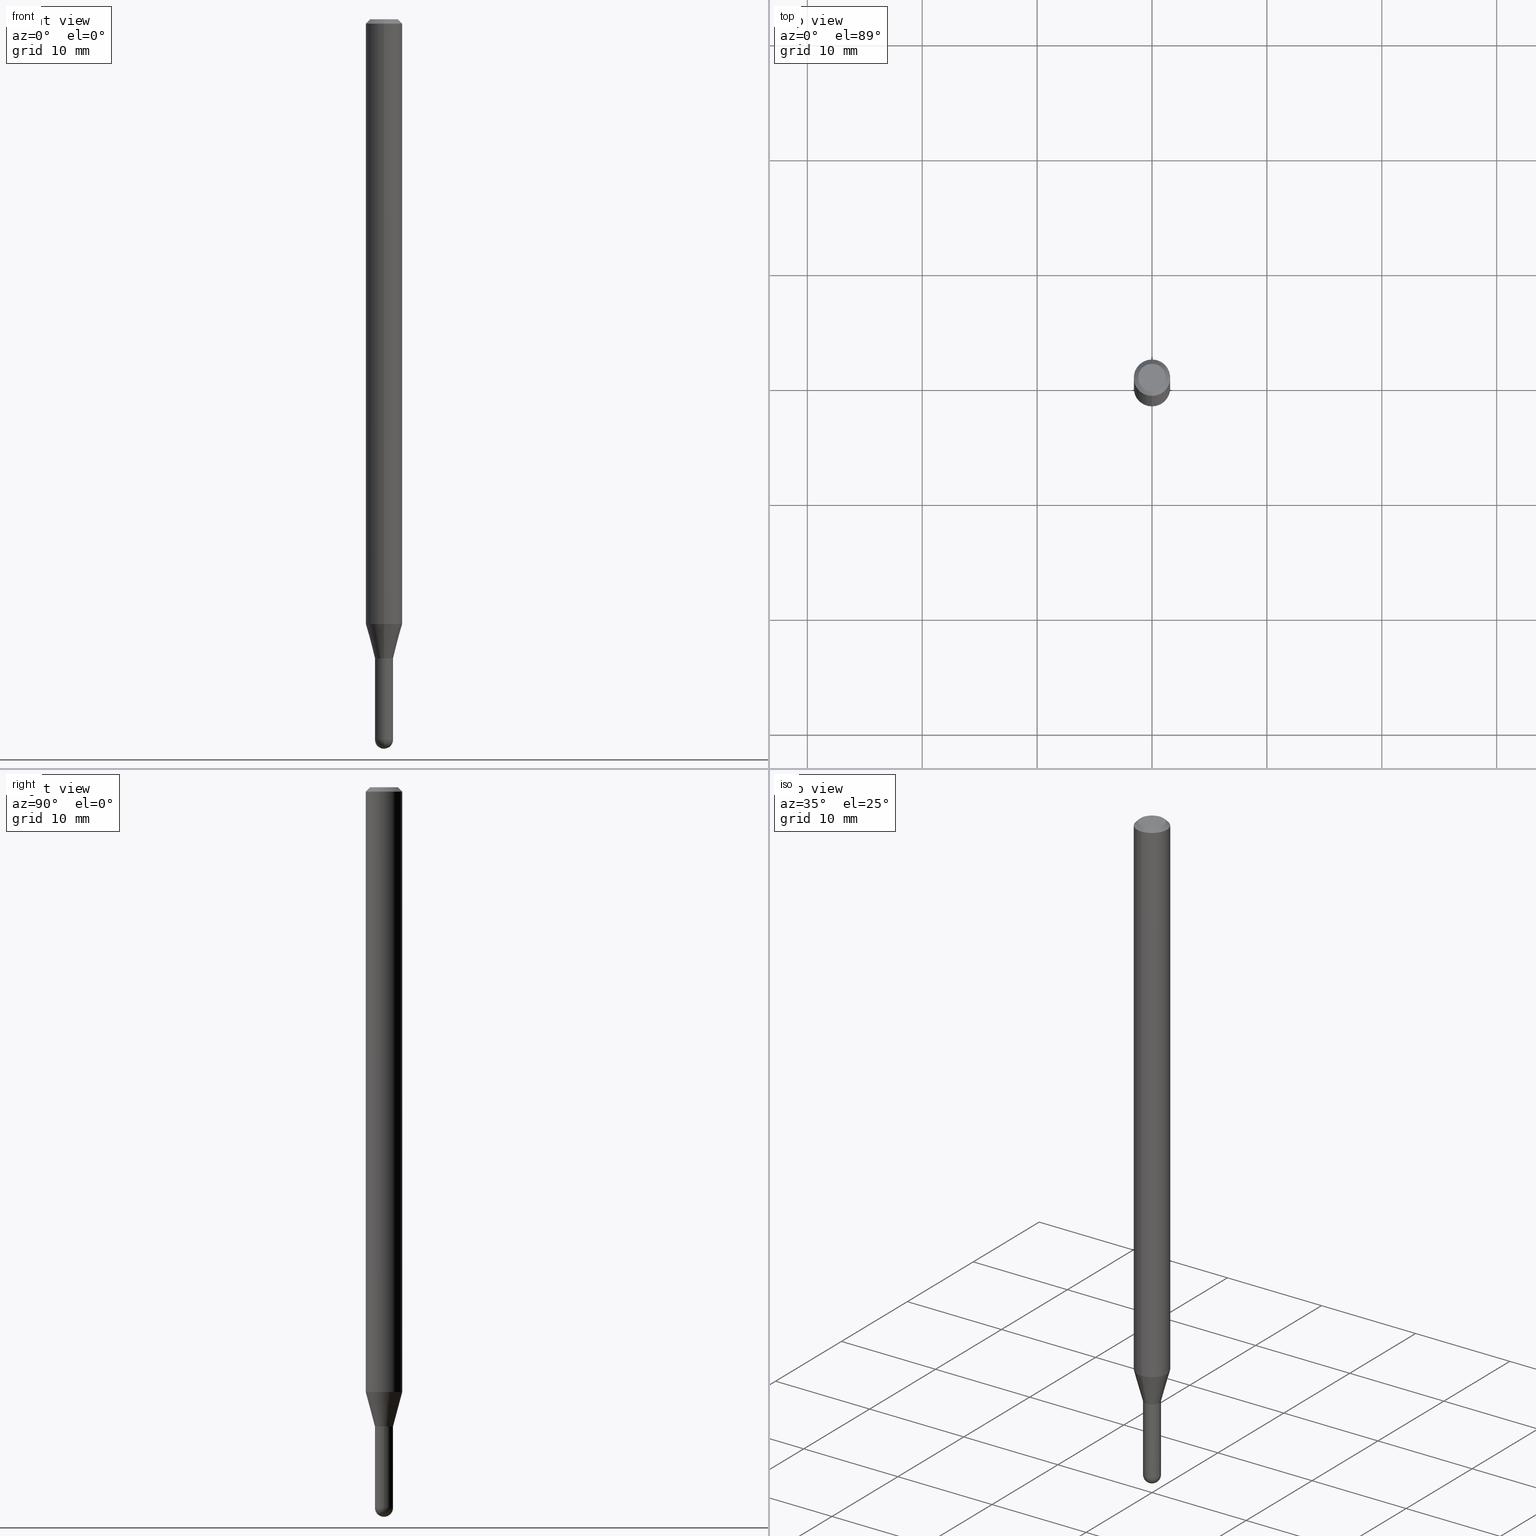
[diagram: canonical four-view strip — front | top / right | iso, engineering-drawing reading convention]
A machine part, canonical four-view strip (front | top / right | iso — engineering-drawing reading convention). The complete STEP part file that produces these views, byte-faithful:
ISO-10303-21;
HEADER;
FILE_DESCRIPTION (( 'STEP AP203' ),
    '1' );
FILE_NAME ('04467.STEP',
    '2024-03-08T19:49:21',
    ( '' ),
    ( '' ),
    'SwSTEP 2.0',
    'SolidWorks 2023',
    '' );
FILE_SCHEMA (( 'CONFIG_CONTROL_DESIGN' ));
ENDSEC;

DATA;
#1 = VECTOR ( 'NONE', #56, 39.37007874015748143 ) ;
#2 = CALENDAR_DATE ( 2024, 8, 3 ) ;
#3 = EDGE_CURVE ( 'NONE', #295, #327, #208, .T. ) ;
#4 = EDGE_LOOP ( 'NONE', ( #88, #420, #488, #507 ) ) ;
#5 = CARTESIAN_POINT ( 'NONE',  ( -0.03099999999999999978, -7.913137530749477307E-15, -2.469000000000000306 ) ) ;
#6 = PERSON_AND_ORGANIZATION ( #233, #476 ) ;
#7 =( NAMED_UNIT ( * ) PLANE_ANGLE_UNIT ( ) SI_UNIT ( $, .RADIAN. ) );
#8 = ORIENTED_EDGE ( 'NONE', *, *, #152, .T. ) ;
#9 = CARTESIAN_POINT ( 'NONE',  ( 5.355576685545449192E-29, -7.646344132066488554E-15, -2.189999999999999947 ) ) ;
#10 = PRODUCT_DEFINITION ( 'UNKNOWN', '', #289, #39 ) ;
#11 = COORDINATED_UNIVERSAL_TIME_OFFSET ( 5, 0, .BEHIND. ) ;
#12 = DIRECTION ( 'NONE',  ( -2.445487892702933065E-29, 3.491454005863323886E-15, 1.000000000000000000 ) ) ;
#13 = DIRECTION ( 'NONE',  ( -2.445487892702933065E-29, 3.491454005863323886E-15, 1.000000000000000000 ) ) ;
#14 = EDGE_CURVE ( 'NONE', #173, #66, #314, .T. ) ;
#15 = DIRECTION ( 'NONE',  ( 2.445487892702933065E-29, -3.491454005863323886E-15, -1.000000000000000000 ) ) ;
#16 = ORIENTED_EDGE ( 'NONE', *, *, #247, .T. ) ;
#17 = FACE_OUTER_BOUND ( 'NONE', #459, .T. ) ;
#18 =( CONVERSION_BASED_UNIT ( 'INCH', #211 ) LENGTH_UNIT ( ) NAMED_UNIT ( #358 ) );
#19 = CIRCLE ( 'NONE', #296, 0.03099999999999999978 ) ;
#20 = CARTESIAN_POINT ( 'NONE',  ( -2.129803616693775335E-16, -0.03050000000000764253, -2.189999999999999947 ) ) ;
#21 = ORIENTED_EDGE ( 'NONE', *, *, #424, .F. ) ;
#22 = CARTESIAN_POINT ( 'NONE',  ( 2.202682480856840330E-16, 0.03099999999999227679, -2.189999999999999947 ) ) ;
#23 = VERTEX_POINT ( 'NONE', #305 ) ;
#24 = DIRECTION ( 'NONE',  ( -1.807323732225379443E-15, -0.2588190451025252359, 0.9659258262890670910 ) ) ;
#25 = ORIENTED_EDGE ( 'NONE', *, *, #441, .F. ) ;
#26 = CARTESIAN_POINT ( 'NONE',  ( 6.035211466974647334E-29, -8.624263830681084699E-15, -2.469000000000000306 ) ) ;
#27 = VERTEX_POINT ( 'NONE', #503 ) ;
#28 = CARTESIAN_POINT ( 'NONE',  ( 5.355618485019424233E-29, -7.646284272840679535E-15, -2.189999999999999947 ) ) ;
#29 = CYLINDRICAL_SURFACE ( 'NONE', #203, 0.03099999999999992345 ) ;
#30 = ORIENTED_EDGE ( 'NONE', *, *, #370, .T. ) ;
#31 = EDGE_LOOP ( 'NONE', ( #495, #353, #228, #491 ) ) ;
#32 = CYLINDRICAL_SURFACE ( 'NONE', #45, 0.03099999999999992345 ) ;
#33 = CIRCLE ( 'NONE', #336, 0.03099999999999999978 ) ;
#34 = EDGE_CURVE ( 'NONE', #66, #173, #321, .T. ) ;
#35 = VECTOR ( 'NONE', #280, 39.37007874015748143 ) ;
#36 = APPROVAL_ROLE ( '' ) ;
#37 = PERSON_AND_ORGANIZATION ( #233, #476 ) ;
#38 = VECTOR ( 'NONE', #409, 39.37007874015748143 ) ;
#39 = DESIGN_CONTEXT ( 'detailed design', #210, 'design' ) ;
#40 = LOCAL_TIME ( 14, 49, 21.00000000000000000, #77 ) ;
#41 = APPROVAL_DATE_TIME ( #371, #84 ) ;
#42 = VERTEX_POINT ( 'NONE', #107 ) ;
#43 = DIRECTION ( 'NONE',  ( -6.982962677686265922E-15, -1.000000000000000000, 0.000000000000000000 ) ) ;
#44 = COORDINATED_UNIVERSAL_TIME_OFFSET ( 5, 0, .BEHIND. ) ;
#45 = AXIS2_PLACEMENT_3D ( 'NONE', #351, #487, #324 ) ;
#46 = DIRECTION ( 'NONE',  ( -2.445487892702932784E-29, 3.491454005863323491E-15, 1.000000000000000000 ) ) ;
#47 = ADVANCED_FACE ( 'NONE', ( #64 ), #368, .T. ) ;
#48 = AXIS2_PLACEMENT_3D ( 'NONE', #168, #92, #130 ) ;
#49 = AXIS2_PLACEMENT_3D ( 'NONE', #428, #344, #457 ) ;
#50 = CARTESIAN_POINT ( 'NONE',  ( 3.668231839054415852E-31, -5.237181008795008558E-17, -0.01500000000000006710 ) ) ;
#51 = DIRECTION ( 'NONE',  ( 6.982962677686265922E-15, 1.000000000000000000, 0.000000000000000000 ) ) ;
#52 = CARTESIAN_POINT ( 'NONE',  ( 4.440892098501135963E-16, 0.06249999999999995143, -0.01500000000000028394 ) ) ;
#53 = ORIENTED_EDGE ( 'NONE', *, *, #346, .F. ) ;
#54 = EDGE_CURVE ( 'NONE', #134, #42, #102, .T. ) ;
#55 = ORIENTED_EDGE ( 'NONE', *, *, #313, .F. ) ;
#56 = DIRECTION ( 'NONE',  ( -2.445487892702932784E-29, 3.491454005863323491E-15, 1.000000000000000000 ) ) ;
#57 = AXIS2_PLACEMENT_3D ( 'NONE', #381, #13, #416 ) ;
#58 = ORIENTED_EDGE ( 'NONE', *, *, #158, .T. ) ;
#59 = CARTESIAN_POINT ( 'NONE',  ( 0.03099999999999999978, -8.349877621843383680E-15, -2.469000000000000306 ) ) ;
#60 = DIRECTION ( 'NONE',  ( 1.000000000000000000, -6.982962677686265922E-15, 4.883557194083112340E-29 ) ) ;
#61 = CARTESIAN_POINT ( 'NONE',  ( -2.164718430082201463E-16, -0.03100000000000756664, -2.189999999999999947 ) ) ;
#62 = CIRCLE ( 'NONE', #81, 0.03099999999999992345 ) ;
#63 = ORIENTED_EDGE ( 'NONE', *, *, #76, .F. ) ;
#64 = FACE_OUTER_BOUND ( 'NONE', #452, .T. ) ;
#65 = CARTESIAN_POINT ( 'NONE',  ( 4.440892098501130047E-16, 0.06249999999999273498, -2.072440399561584101 ) ) ;
#66 = VERTEX_POINT ( 'NONE', #307 ) ;
#67 = LOCAL_TIME ( 14, 49, 21.00000000000000000, #11 ) ;
#68 = CARTESIAN_POINT ( 'NONE',  ( -4.364351673553410837E-16, -0.06250000000000725808, -2.072440399561583657 ) ) ;
#69 = EDGE_LOOP ( 'NONE', ( #142, #176, #251, #71 ) ) ;
#70 = ADVANCED_FACE ( 'NONE', ( #465 ), #389, .T. ) ;
#71 = ORIENTED_EDGE ( 'NONE', *, *, #14, .T. ) ;
#72 = VERTEX_POINT ( 'NONE', #59 ) ;
#73 = AXIS2_PLACEMENT_3D ( 'NONE', #187, #464, #103 ) ;
#74 = DIRECTION ( 'NONE',  ( -6.982962677686265922E-15, -1.000000000000000000, 3.491454005863323886E-15 ) ) ;
#75 = CARTESIAN_POINT ( 'NONE',  ( 3.321787289678987037E-16, 0.03099999999999227679, -2.189999999999999947 ) ) ;
#76 = EDGE_CURVE ( 'NONE', #468, #173, #264, .T. ) ;
#77 = COORDINATED_UNIVERSAL_TIME_OFFSET ( 5, 0, .BEHIND. ) ;
#78 = APPROVAL_PERSON_ORGANIZATION ( #481, #111, #36 ) ;
#79 = CARTESIAN_POINT ( 'NONE',  ( 4.440892098500625669E-16, 0.06250000000000000000, -2.182158753664577429E-16 ) ) ;
#80 = CALENDAR_DATE ( 2024, 8, 3 ) ;
#81 = AXIS2_PLACEMENT_3D ( 'NONE', #357, #397, #43 ) ;
#82 = EDGE_CURVE ( 'NONE', #85, #66, #429, .T. ) ;
#83 = LINE ( 'NONE', #243, #396 ) ;
#84 = APPROVAL ( #115, 'UNSPECIFIED' ) ;
#85 = VERTEX_POINT ( 'NONE', #68 ) ;
#86 = AXIS2_PLACEMENT_3D ( 'NONE', #448, #442, #87 ) ;
#87 = DIRECTION ( 'NONE',  ( 6.982962677686265922E-15, 1.000000000000000000, -3.491454005863323491E-15 ) ) ;
#88 = ORIENTED_EDGE ( 'NONE', *, *, #175, .T. ) ;
#89 = CARTESIAN_POINT ( 'NONE',  ( 6.035211466974647334E-29, -8.624263830681084699E-15, -2.469000000000000306 ) ) ;
#90 = ADVANCED_FACE ( 'NONE', ( #435 ), #508, .F. ) ;
#91 = AXIS2_PLACEMENT_3D ( 'NONE', #258, #192, #270 ) ;
#92 = DIRECTION ( 'NONE',  ( -2.445487892702933065E-29, 3.491454005863323886E-15, 1.000000000000000000 ) ) ;
#93 = EDGE_LOOP ( 'NONE', ( #58, #95 ) ) ;
#94 = VERTEX_POINT ( 'NONE', #438 ) ;
#95 = ORIENTED_EDGE ( 'NONE', *, *, #450, .T. ) ;
#96 = CARTESIAN_POINT ( 'NONE',  ( 3.840629472727447874E-16, 0.04749999999999999362, -2.313455976474456035E-16 ) ) ;
#97 = CARTESIAN_POINT ( 'NONE',  ( 1.601832043617265046E-45, -2.286955875797138109E-31, -6.550153236893773664E-17 ) ) ;
#98 = ORIENTED_EDGE ( 'NONE', *, *, #247, .F. ) ;
#99 = PLANE ( 'NONE',  #159 ) ;
#100 = ADVANCED_FACE ( 'NONE', ( #155 ), #241, .T. ) ;
#101 = ORIENTED_EDGE ( 'NONE', *, *, #450, .F. ) ;
#102 = LINE ( 'NONE', #302, #398 ) ;
#103 = DIRECTION ( 'NONE',  ( -7.105427357601001070E-15, -1.000000000000000000, 0.000000000000000000 ) ) ;
#104 = DIRECTION ( 'NONE',  ( -1.000000000000000000, 6.982962677686265922E-15, -4.883557194083112340E-29 ) ) ;
#105 = VECTOR ( 'NONE', #24, 39.37007874015748143 ) ;
#106 = LINE ( 'NONE', #22, #230 ) ;
#107 = CARTESIAN_POINT ( 'NONE',  ( -0.03099999999999999978, -7.913137530749477307E-15, -2.189999999999999947 ) ) ;
#108 = EDGE_CURVE ( 'NONE', #331, #94, #62, .T. ) ;
#109 = DIRECTION ( 'NONE',  ( -2.445487892702933065E-29, 3.491454005863323886E-15, 1.000000000000000000 ) ) ;
#110 = AXIS2_PLACEMENT_3D ( 'NONE', #232, #114, #480 ) ;
#111 = APPROVAL ( #316, 'UNSPECIFIED' ) ;
#112 = DIRECTION ( 'NONE',  ( -2.445468806185136597E-29, 3.491481338843145583E-15, 1.000000000000000000 ) ) ;
#113 = ORIENTED_EDGE ( 'NONE', *, *, #337, .F. ) ;
#114 = DIRECTION ( 'NONE',  ( 2.438088387897960049E-29, -3.491481338843145188E-15, -1.000000000000000000 ) ) ;
#115 = APPROVAL_STATUS ( 'not_yet_approved' ) ;
#116 = CIRCLE ( 'NONE', #259, 0.03099999999999999978 ) ;
#117 = ADVANCED_FACE ( 'NONE', ( #157 ), #197, .T. ) ;
#118 = APPROVAL_ROLE ( '' ) ;
#119 = VERTEX_POINT ( 'NONE', #75 ) ;
#120 = DIRECTION ( 'NONE',  ( -2.445487892702933065E-29, 3.491454005863323886E-15, 1.000000000000000000 ) ) ;
#121 = CC_DESIGN_PERSON_AND_ORGANIZATION_ASSIGNMENT ( #479, #439, ( #10 ) ) ;
#122 = APPROVAL_ROLE ( '' ) ;
#123 = FACE_OUTER_BOUND ( 'NONE', #446, .T. ) ;
#124 = CIRCLE ( 'NONE', #458, 0.03099999999999992345 ) ;
#125 = PERSON_AND_ORGANIZATION ( #233, #476 ) ;
#126 = ADVANCED_FACE ( 'NONE', ( #401 ), #427, .T. ) ;
#127 = SPHERICAL_SURFACE ( 'NONE', #412, 0.03099999999999987835 ) ;
#128 = AXIS2_PLACEMENT_3D ( 'NONE', #512, #160, #74 ) ;
#129 = LINE ( 'NONE', #287, #153 ) ;
#130 = DIRECTION ( 'NONE',  ( -6.982962677686265922E-15, -1.000000000000000000, 0.000000000000000000 ) ) ;
#131 = ORIENTED_EDGE ( 'NONE', *, *, #301, .T. ) ;
#132 = CC_DESIGN_APPROVAL ( #111, ( #289 ) ) ;
#133 = CARTESIAN_POINT ( 'NONE',  ( 6.035211466974647334E-29, -8.624263830681084699E-15, -2.469000000000000306 ) ) ;
#134 = VERTEX_POINT ( 'NONE', #5 ) ;
#135 = DIRECTION ( 'NONE',  ( 1.000000000000000000, -6.982962677686270655E-15, 0.000000000000000000 ) ) ;
#136 = CYLINDRICAL_SURFACE ( 'NONE', #499, 0.06250000000000000000 ) ;
#137 = ORIENTED_EDGE ( 'NONE', *, *, #14, .F. ) ;
#138 = DIRECTION ( 'NONE',  ( -2.445468806185136597E-29, 3.491481338843145583E-15, 1.000000000000000000 ) ) ;
#139 = AXIS2_PLACEMENT_3D ( 'NONE', #9, #112, #165 ) ;
#140 = AXIS2_PLACEMENT_3D ( 'NONE', #419, #12, #204 ) ;
#141 = CARTESIAN_POINT ( 'NONE',  ( -2.202682480855702151E-16, -0.03100000000000856237, -2.469000000000000306 ) ) ;
#142 = ORIENTED_EDGE ( 'NONE', *, *, #301, .F. ) ;
#143 = CARTESIAN_POINT ( 'NONE',  ( 5.355618485019424233E-29, -7.646284272840679535E-15, -2.189999999999999947 ) ) ;
#144 = DIRECTION ( 'NONE',  ( 1.000000000000000000, -6.982962677686266711E-15, 4.876176775795935232E-29 ) ) ;
#145 = AXIS2_PLACEMENT_3D ( 'NONE', #494, #199, #180 ) ;
#146 = EDGE_CURVE ( 'NONE', #27, #468, #352, .T. ) ;
#147 = CARTESIAN_POINT ( 'NONE',  ( 5.355618485019424233E-29, -7.646284272840679535E-15, -2.189999999999999947 ) ) ;
#148 = ORIENTED_EDGE ( 'NONE', *, *, #391, .F. ) ;
#149 = CARTESIAN_POINT ( 'NONE',  ( 3.668231839054415852E-31, -5.237181008795008558E-17, -0.01500000000000006710 ) ) ;
#150 = DIRECTION ( 'NONE',  ( -2.445487892702933065E-29, 3.491454005863323886E-15, 1.000000000000000000 ) ) ;
#151 = LINE ( 'NONE', #61, #105 ) ;
#152 = EDGE_CURVE ( 'NONE', #72, #23, #354, .T. ) ;
#153 = VECTOR ( 'NONE', #444, 39.37007874015748143 ) ;
#154 = DIRECTION ( 'NONE',  ( -2.445487892702933065E-29, 3.491454005863323886E-15, 1.000000000000000000 ) ) ;
#155 = FACE_OUTER_BOUND ( 'NONE', #205, .T. ) ;
#156 = ORIENTED_EDGE ( 'NONE', *, *, #478, .T. ) ;
#157 = FACE_OUTER_BOUND ( 'NONE', #4, .T. ) ;
#158 = EDGE_CURVE ( 'NONE', #23, #42, #463, .T. ) ;
#159 = AXIS2_PLACEMENT_3D ( 'NONE', #147, #256, #298 ) ;
#160 = DIRECTION ( 'NONE',  ( -2.445487892702933065E-29, 3.491454005863323886E-15, 1.000000000000000000 ) ) ;
#161 = APPROVAL_STATUS ( 'not_yet_approved' ) ;
#162 = CARTESIAN_POINT ( 'NONE',  ( 1.601832043617265046E-45, -2.286955875797138109E-31, -6.550153236893773664E-17 ) ) ;
#163 = DATE_TIME_ROLE ( 'classification_date' ) ;
#164 = DIRECTION ( 'NONE',  ( 5.024295867788190974E-15, 0.7071067811865681119, 0.7071067811865270336 ) ) ;
#165 = DIRECTION ( 'NONE',  ( 1.000000000000000000, -6.982962677686270655E-15, 0.000000000000000000 ) ) ;
#166 = ADVANCED_FACE ( 'NONE', ( #123 ), #32, .F. ) ;
#167 = SECURITY_CLASSIFICATION_LEVEL ( 'unclassified' ) ;
#168 = CARTESIAN_POINT ( 'NONE',  ( 5.355618485019424233E-29, -7.646284272840679535E-15, -2.189999999999999947 ) ) ;
#169 = CIRCLE ( 'NONE', #73, 0.03099999999999987835 ) ;
#170 = PERSON_AND_ORGANIZATION_ROLE ( 'creator' ) ;
#171 = CARTESIAN_POINT ( 'NONE',  ( 5.355618485019424233E-29, -7.646284272840679535E-15, -2.189999999999999947 ) ) ;
#172 = PLANE ( 'NONE',  #86 ) ;
#173 = VERTEX_POINT ( 'NONE', #52 ) ;
#174 = CARTESIAN_POINT ( 'NONE',  ( 2.167155344068840712E-16, 0.03049999999999235267, -2.189999999999999947 ) ) ;
#175 = EDGE_CURVE ( 'NONE', #85, #385, #250, .T. ) ;
#176 = ORIENTED_EDGE ( 'NONE', *, *, #370, .F. ) ;
#177 = CIRCLE ( 'NONE', #254, 0.06250000000000000000 ) ;
#178 = DIRECTION ( 'NONE',  ( -6.982962677686265922E-15, -1.000000000000000000, 0.000000000000000000 ) ) ;
#179 = EDGE_LOOP ( 'NONE', ( #221, #335, #25, #265 ) ) ;
#180 = DIRECTION ( 'NONE',  ( 1.000000000000000000, -6.982962677686266711E-15, 4.876176775795935232E-29 ) ) ;
#181 = DIRECTION ( 'NONE',  ( -2.445487892702933065E-29, 3.491454005863323886E-15, 1.000000000000000000 ) ) ;
#182 = DIRECTION ( 'NONE',  ( 1.839019923739650408E-15, 0.2588190451025319527, 0.9659258262890650926 ) ) ;
#183 = CARTESIAN_POINT ( 'NONE',  ( 0.000000000000000000, 0.000000000000000000, 0.000000000000000000 ) ) ;
#184 = ORIENTED_EDGE ( 'NONE', *, *, #267, .T. ) ;
#185 = CC_DESIGN_PERSON_AND_ORGANIZATION_ASSIGNMENT ( #364, #443, ( #253 ) ) ;
#186 = AXIS2_PLACEMENT_3D ( 'NONE', #403, #138, #144 ) ;
#187 = CARTESIAN_POINT ( 'NONE',  ( 6.035211466974647334E-29, -8.624263830681084699E-15, -2.469000000000000306 ) ) ;
#188 = DIRECTION ( 'NONE',  ( -2.445487892702933065E-29, 3.491454005863323886E-15, 1.000000000000000000 ) ) ;
#189 = ORIENTED_EDGE ( 'NONE', *, *, #346, .T. ) ;
#190 = ORIENTED_EDGE ( 'NONE', *, *, #273, .T. ) ;
#191 = FACE_OUTER_BOUND ( 'NONE', #69, .T. ) ;
#192 = DIRECTION ( 'NONE',  ( -2.445487892702933065E-29, 3.491454005863323886E-15, 1.000000000000000000 ) ) ;
#193 = DIRECTION ( 'NONE',  ( -6.982962677686266711E-15, -1.000000000000000000, 3.491454005863323886E-15 ) ) ;
#194 = AXIS2_PLACEMENT_3D ( 'NONE', #201, #367, #363 ) ;
#195 = PERSON_AND_ORGANIZATION ( #233, #476 ) ;
#196 = APPROVAL_PERSON_ORGANIZATION ( #125, #240, #122 ) ;
#197 = CYLINDRICAL_SURFACE ( 'NONE', #128, 0.06250000000000000000 ) ;
#198 = DATE_TIME_ROLE ( 'creation_date' ) ;
#199 = DIRECTION ( 'NONE',  ( -2.445468806185136597E-29, 3.491481338843145583E-15, 1.000000000000000000 ) ) ;
#200 = ADVANCED_FACE ( 'NONE', ( #483 ), #333, .T. ) ;
#201 = CARTESIAN_POINT ( 'NONE',  ( 5.355618485019424233E-29, -7.646284272840679535E-15, -2.189999999999999947 ) ) ;
#202 = PERSON_AND_ORGANIZATION ( #233, #476 ) ;
#203 = AXIS2_PLACEMENT_3D ( 'NONE', #183, #304, #332 ) ;
#204 = DIRECTION ( 'NONE',  ( -6.982962677686265922E-15, -1.000000000000000000, 4.370956789862821150E-15 ) ) ;
#205 = EDGE_LOOP ( 'NONE', ( #339, #467, #493, #148 ) ) ;
#206 = CYLINDRICAL_SURFACE ( 'NONE', #145, 0.03099999999999999978 ) ;
#207 = EDGE_CURVE ( 'NONE', #376, #94, #244, .T. ) ;
#208 = CIRCLE ( 'NONE', #91, 0.03049999999999999586 ) ;
#209 = DIRECTION ( 'NONE',  ( -2.445487892702933065E-29, 3.491454005863323886E-15, 1.000000000000000000 ) ) ;
#210 = APPLICATION_CONTEXT ( 'configuration controlled 3d designs of mechanical parts and assemblies' ) ;
#211 = LENGTH_MEASURE_WITH_UNIT ( LENGTH_MEASURE( 0.02539999999999999897 ), #330 );
#212 = CC_DESIGN_PERSON_AND_ORGANIZATION_ASSIGNMENT ( #202, #437, ( #289 ) ) ;
#213 = FACE_OUTER_BOUND ( 'NONE', #216, .T. ) ;
#214 = ORIENTED_EDGE ( 'NONE', *, *, #207, .T. ) ;
#215 = CARTESIAN_POINT ( 'NONE',  ( 2.184918912462840521E-16, 0.03049999999999235267, -2.189999999999999947 ) ) ;
#216 = EDGE_LOOP ( 'NONE', ( #21, #440, #53, #425 ) ) ;
#217 = CARTESIAN_POINT ( 'NONE',  ( 3.668231839054415852E-31, -5.237181008795008558E-17, -0.01500000000000006710 ) ) ;
#218 = LINE ( 'NONE', #418, #1 ) ;
#219 = AXIS2_PLACEMENT_3D ( 'NONE', #26, #104, #272 ) ;
#220 = FACE_OUTER_BOUND ( 'NONE', #31, .T. ) ;
#221 = ORIENTED_EDGE ( 'NONE', *, *, #456, .F. ) ;
#222 = CC_DESIGN_PERSON_AND_ORGANIZATION_ASSIGNMENT ( #6, #170, ( #289 ) ) ;
#223 = DIRECTION ( 'NONE',  ( 0.000000000000000000, 0.000000000000000000, 1.000000000000000000 ) ) ;
#224 = DIRECTION ( 'NONE',  ( -2.445468806185136597E-29, 3.491481338843145583E-15, 1.000000000000000000 ) ) ;
#225 = CARTESIAN_POINT ( 'NONE',  ( -2.164718430082201463E-16, -0.03100000000000756664, -2.189999999999999947 ) ) ;
#226 = EDGE_CURVE ( 'NONE', #385, #173, #373, .T. ) ;
#227 = FACE_OUTER_BOUND ( 'NONE', #433, .T. ) ;
#228 = ORIENTED_EDGE ( 'NONE', *, *, #108, .T. ) ;
#229 = ORIENTED_EDGE ( 'NONE', *, *, #3, .T. ) ;
#230 = VECTOR ( 'NONE', #182, 39.37007874015748854 ) ;
#231 = ORIENTED_EDGE ( 'NONE', *, *, #286, .T. ) ;
#232 = CARTESIAN_POINT ( 'NONE',  ( 2.164718430083277765E-16, 0.03099999999999235312, -2.189999999999999947 ) ) ;
#233 = PERSON ( 'UNSPECIFIED', 'UNSPECIFIED', 'UNSPECIFIED', ('UNSPECIFIED'), ('UNSPECIFIED'), ('UNSPECIFIED') ) ;
#234 = EDGE_LOOP ( 'NONE', ( #30, #329 ) ) ;
#235 = UNCERTAINTY_MEASURE_WITH_UNIT (LENGTH_MEASURE( 1.000000000000000082E-05 ), #18, 'distance_accuracy_value', 'NONE');
#236 = COORDINATED_UNIVERSAL_TIME_OFFSET ( 5, 0, .BEHIND. ) ;
#237 = ADVANCED_FACE ( 'NONE', ( #213 ), #127, .T. ) ;
#238 = AXIS2_PLACEMENT_3D ( 'NONE', #97, #423, #504 ) ;
#239 = CARTESIAN_POINT ( 'NONE',  ( 5.355618485019424233E-29, -7.646284272840679535E-15, -2.189999999999999947 ) ) ;
#240 = APPROVAL ( #161, 'UNSPECIFIED' ) ;
#241 = CONICAL_SURFACE ( 'NONE', #485, 0.03099999999999992345, 0.2617993877991575680 ) ;
#242 = COORDINATED_UNIVERSAL_TIME_OFFSET ( 5, 0, .BEHIND. ) ;
#243 = CARTESIAN_POINT ( 'NONE',  ( -2.129803616693775335E-16, -0.03050000000000764253, -2.189999999999999947 ) ) ;
#244 = LINE ( 'NONE', #317, #38 ) ;
#245 = PRODUCT_DEFINITION_SHAPE ( 'NONE', 'NONE',  #10 ) ;
#246 = CIRCLE ( 'NONE', #268, 0.03099999999999987835 ) ;
#247 = EDGE_CURVE ( 'NONE', #94, #331, #415, .T. ) ;
#248 = EDGE_LOOP ( 'NONE', ( #113, #231, #350, #474 ) ) ;
#249 = ORIENTED_EDGE ( 'NONE', *, *, #3, .F. ) ;
#250 = CIRCLE ( 'NONE', #140, 0.06250000000000000000 ) ;
#251 = ORIENTED_EDGE ( 'NONE', *, *, #76, .T. ) ;
#252 = FACE_OUTER_BOUND ( 'NONE', #323, .T. ) ;
#253 = PRODUCT ( '04467', '04467', '', ( #369 ) ) ;
#254 = AXIS2_PLACEMENT_3D ( 'NONE', #269, #498, #392 ) ;
#255 = CC_DESIGN_PERSON_AND_ORGANIZATION_ASSIGNMENT ( #195, #275, ( #360 ) ) ;
#256 = DIRECTION ( 'NONE',  ( -2.445487892702933065E-29, 3.491454005863323491E-15, 1.000000000000000000 ) ) ;
#257 = ORIENTED_EDGE ( 'NONE', *, *, #432, .T. ) ;
#258 = CARTESIAN_POINT ( 'NONE',  ( 5.355618485019424233E-29, -7.646284272840679535E-15, -2.189999999999999947 ) ) ;
#259 = AXIS2_PLACEMENT_3D ( 'NONE', #320, #411, #486 ) ;
#260 = CARTESIAN_POINT ( 'NONE',  ( 6.037862482471103495E-29, -8.620467425603728566E-15, -2.469000000000000306 ) ) ;
#261 = AXIS2_PLACEMENT_3D ( 'NONE', #50, #15, #285 ) ;
#262 = AXIS2_PLACEMENT_3D ( 'NONE', #162, #120, #193 ) ;
#263 = DIRECTION ( 'NONE',  ( -2.445468806185136597E-29, 3.491481338843145583E-15, 1.000000000000000000 ) ) ;
#264 = LINE ( 'NONE', #386, #309 ) ;
#265 = ORIENTED_EDGE ( 'NONE', *, *, #273, .F. ) ;
#266 = DIRECTION ( 'NONE',  ( 4.937700262164548042E-15, 0.7071067811865451302, -0.7071067811865499042 ) ) ;
#267 = EDGE_CURVE ( 'NONE', #327, #295, #349, .T. ) ;
#268 = AXIS2_PLACEMENT_3D ( 'NONE', #89, #60, #51 ) ;
#269 = CARTESIAN_POINT ( 'NONE',  ( 5.068127905476282688E-29, -7.235830334962279648E-15, -2.072440399561584101 ) ) ;
#270 = DIRECTION ( 'NONE',  ( -6.982962677686265922E-15, -1.000000000000000000, 0.000000000000000000 ) ) ;
#271 = ORIENTED_EDGE ( 'NONE', *, *, #108, .F. ) ;
#272 = DIRECTION ( 'NONE',  ( 6.982962677686265922E-15, 1.000000000000000000, 0.000000000000000000 ) ) ;
#273 = EDGE_CURVE ( 'NONE', #449, #134, #116, .T. ) ;
#274 = AXIS2_PLACEMENT_3D ( 'NONE', #294, #263, #387 ) ;
#275 = PERSON_AND_ORGANIZATION_ROLE ( 'classification_officer' ) ;
#276 = AXIS2_PLACEMENT_3D ( 'NONE', #149, #154, #426 ) ;
#277 = ADVANCED_FACE ( 'NONE', ( #17 ), #348, .T. ) ;
#278 = CALENDAR_DATE ( 2024, 8, 3 ) ;
#279 = DIRECTION ( 'NONE',  ( 1.000000000000000000, -6.982962677686270655E-15, 0.000000000000000000 ) ) ;
#280 = DIRECTION ( 'NONE',  ( -2.445468806185136877E-29, 3.491481338843145188E-15, 1.000000000000000000 ) ) ;
#281 = APPROVAL_DATE_TIME ( #484, #240 ) ;
#282 = APPROVAL_PERSON_ORGANIZATION ( #37, #84, #118 ) ;
#283 = FACE_OUTER_BOUND ( 'NONE', #234, .T. ) ;
#284 = APPROVAL_DATE_TIME ( #315, #111 ) ;
#285 = DIRECTION ( 'NONE',  ( 6.982962677686265922E-15, 1.000000000000000000, -3.483106191921935554E-15 ) ) ;
#286 = EDGE_CURVE ( 'NONE', #119, #376, #482, .T. ) ;
#287 = CARTESIAN_POINT ( 'NONE',  ( -4.287811248607203282E-16, -0.06250000000000005551, -0.01499999999999984852 ) ) ;
#288 = CARTESIAN_POINT ( 'NONE',  ( 5.355618485019424233E-29, -7.646284272840679535E-15, -2.189999999999999947 ) ) ;
#289 = PRODUCT_DEFINITION_FORMATION_WITH_SPECIFIED_SOURCE ( 'ANY', '', #253, .NOT_KNOWN. ) ;
#290 = ORIENTED_EDGE ( 'NONE', *, *, #146, .F. ) ;
#291 = ORIENTED_EDGE ( 'NONE', *, *, #313, .T. ) ;
#292 = ADVANCED_FACE ( 'NONE', ( #283 ), #172, .F. ) ;
#293 = ORIENTED_EDGE ( 'NONE', *, *, #441, .T. ) ;
#294 = CARTESIAN_POINT ( 'NONE',  ( 6.037862482471103495E-29, -8.620467425603728566E-15, -2.469000000000000306 ) ) ;
#295 = VERTEX_POINT ( 'NONE', #20 ) ;
#296 = AXIS2_PLACEMENT_3D ( 'NONE', #260, #224, #279 ) ;
#297 = DIRECTION ( 'NONE',  ( -6.982962677686265922E-15, -1.000000000000000000, 3.491454005863323886E-15 ) ) ;
#298 = DIRECTION ( 'NONE',  ( -6.982962677686265922E-15, -1.000000000000000000, 3.491454005863323491E-15 ) ) ;
#299 = ORIENTED_EDGE ( 'NONE', *, *, #158, .F. ) ;
#300 = CLOSED_SHELL ( 'NONE', ( #393, #47, #277, #117, #100, #126, #436, #361, #292, #326, #200, #166 ) ) ;
#301 = EDGE_CURVE ( 'NONE', #27, #66, #129, .T. ) ;
#302 = CARTESIAN_POINT ( 'NONE',  ( -0.03099999999999999978, 2.202682480856310560E-16, -1.524869877979020612E-30 ) ) ;
#303 = FACE_OUTER_BOUND ( 'NONE', #497, .T. ) ;
#304 = DIRECTION ( 'NONE',  ( -2.445487892702933065E-29, 3.491454005863323886E-15, 1.000000000000000000 ) ) ;
#305 = CARTESIAN_POINT ( 'NONE',  ( 0.03099999999999999978, -7.862815975074762885E-15, -2.189999999999999947 ) ) ;
#306 = VECTOR ( 'NONE', #164, 39.37007874015748143 ) ;
#307 = CARTESIAN_POINT ( 'NONE',  ( -4.364351673553912750E-16, -0.06250000000000005551, -0.01499999999999984852 ) ) ;
#308 = AXIS2_PLACEMENT_3D ( 'NONE', #288, #328, #178 ) ;
#309 = VECTOR ( 'NONE', #266, 39.37007874015748143 ) ;
#310 = DIRECTION ( 'NONE',  ( -6.982962677686265922E-15, -1.000000000000000000, 0.000000000000000000 ) ) ;
#311 = CARTESIAN_POINT ( 'NONE',  ( 0.03099999999999999978, -2.164718430082742572E-16, 1.511614800496739984E-30 ) ) ;
#312 = LOCAL_TIME ( 14, 49, 21.00000000000000000, #44 ) ;
#313 = EDGE_CURVE ( 'NONE', #295, #94, #83, .T. ) ;
#314 = CIRCLE ( 'NONE', #340, 0.06250000000000000000 ) ;
#315 = DATE_AND_TIME ( #80, #67 ) ;
#316 = APPROVAL_STATUS ( 'not_yet_approved' ) ;
#317 = CARTESIAN_POINT ( 'NONE',  ( -2.164718430082737148E-16, -0.03099999999999992345, 1.082350741817627739E-16 ) ) ;
#318 = DATE_AND_TIME ( #2, #431 ) ;
#319 = EDGE_CURVE ( 'NONE', #376, #119, #124, .T. ) ;
#320 = CARTESIAN_POINT ( 'NONE',  ( 6.037862482471103495E-29, -8.620467425603728566E-15, -2.469000000000000306 ) ) ;
#321 = CIRCLE ( 'NONE', #276, 0.06250000000000000000 ) ;
#322 = PRODUCT_RELATED_PRODUCT_CATEGORY ( 'detail', '', ( #253 ) ) ;
#323 = EDGE_LOOP ( 'NONE', ( #190, #500, #299, #399, #189 ) ) ;
#324 = DIRECTION ( 'NONE',  ( -6.982962677686265922E-15, -1.000000000000000000, 3.491454005863323886E-15 ) ) ;
#325 = CIRCLE ( 'NONE', #274, 0.03099999999999999978 ) ;
#326 = ADVANCED_FACE ( 'NONE', ( #227 ), #99, .F. ) ;
#327 = VERTEX_POINT ( 'NONE', #215 ) ;
#328 = DIRECTION ( 'NONE',  ( -2.445487892702933065E-29, 3.491454005863323886E-15, 1.000000000000000000 ) ) ;
#329 = ORIENTED_EDGE ( 'NONE', *, *, #146, .T. ) ;
#330 =( LENGTH_UNIT ( ) NAMED_UNIT ( * ) SI_UNIT ( $, .METRE. ) );
#331 = VERTEX_POINT ( 'NONE', #342 ) ;
#332 = DIRECTION ( 'NONE',  ( -6.982962677686265922E-15, -1.000000000000000000, 3.491454005863323886E-15 ) ) ;
#333 = CONICAL_SURFACE ( 'NONE', #48, 0.03049999999999999586, 0.7853981633974739252 ) ;
#334 = ORIENTED_EDGE ( 'NONE', *, *, #267, .F. ) ;
#335 = ORIENTED_EDGE ( 'NONE', *, *, #424, .T. ) ;
#336 = AXIS2_PLACEMENT_3D ( 'NONE', #466, #356, #460 ) ;
#337 = EDGE_CURVE ( 'NONE', #119, #385, #106, .T. ) ;
#338 = ORIENTED_EDGE ( 'NONE', *, *, #226, .F. ) ;
#339 = ORIENTED_EDGE ( 'NONE', *, *, #319, .T. ) ;
#340 = AXIS2_PLACEMENT_3D ( 'NONE', #217, #109, #501 ) ;
#341 = CC_DESIGN_DATE_AND_TIME_ASSIGNMENT ( #318, #163, ( #360 ) ) ;
#342 = CARTESIAN_POINT ( 'NONE',  ( 2.202682480856832688E-16, 0.03099999999999216924, -2.189500000000000224 ) ) ;
#343 = VERTEX_POINT ( 'NONE', #141 ) ;
#344 = DIRECTION ( 'NONE',  ( 2.445487892702933065E-29, -3.491454005863323886E-15, -1.000000000000000000 ) ) ;
#345 = EDGE_LOOP ( 'NONE', ( #366, #293, #257, #8, #101 ) ) ;
#346 = EDGE_CURVE ( 'NONE', #72, #449, #325, .T. ) ;
#347 = CC_DESIGN_SECURITY_CLASSIFICATION ( #360, ( #289 ) ) ;
#348 = CONICAL_SURFACE ( 'NONE', #261, 0.06250000000000000000, 0.7853981633974483900 ) ;
#349 = CIRCLE ( 'NONE', #308, 0.03049999999999999586 ) ;
#350 = ORIENTED_EDGE ( 'NONE', *, *, #391, .T. ) ;
#351 = CARTESIAN_POINT ( 'NONE',  ( 0.000000000000000000, 0.000000000000000000, 0.000000000000000000 ) ) ;
#352 = CIRCLE ( 'NONE', #262, 0.04749999999999999362 ) ;
#353 = ORIENTED_EDGE ( 'NONE', *, *, #505, .T. ) ;
#354 = LINE ( 'NONE', #311, #35 ) ;
#355 = SHAPE_DEFINITION_REPRESENTATION ( #245, #374 ) ;
#356 = DIRECTION ( 'NONE',  ( -2.445468806185136597E-29, 3.491481338843145583E-15, 1.000000000000000000 ) ) ;
#357 = CARTESIAN_POINT ( 'NONE',  ( 5.354395741073071863E-29, -7.644538545837748622E-15, -2.189500000000000224 ) ) ;
#358 = DIMENSIONAL_EXPONENTS ( 1.000000000000000000, 0.000000000000000000, 0.000000000000000000, 0.000000000000000000, 0.000000000000000000, 0.000000000000000000, 0.000000000000000000 ) ;
#359 = DIRECTION ( 'NONE',  ( 1.000000000000000000, 0.000000000000000000, 0.000000000000000000 ) ) ;
#360 = SECURITY_CLASSIFICATION ( '', '', #167 ) ;
#361 = ADVANCED_FACE ( 'NONE', ( #191 ), #404, .T. ) ;
#362 = VECTOR ( 'NONE', #46, 39.37007874015748143 ) ;
#363 = DIRECTION ( 'NONE',  ( -6.982962677686265922E-15, -1.000000000000000000, 0.000000000000000000 ) ) ;
#364 = PERSON_AND_ORGANIZATION ( #233, #476 ) ;
#365 = FACE_OUTER_BOUND ( 'NONE', #345, .T. ) ;
#366 = ORIENTED_EDGE ( 'NONE', *, *, #54, .F. ) ;
#367 = DIRECTION ( 'NONE',  ( -2.445487892702933065E-29, 3.491454005863323886E-15, 1.000000000000000000 ) ) ;
#368 = CONICAL_SURFACE ( 'NONE', #472, 0.03049999999999999586, 0.7853981633974739252 ) ;
#369 = MECHANICAL_CONTEXT ( 'NONE', #388, 'mechanical' ) ;
#370 = EDGE_CURVE ( 'NONE', #468, #27, #447, .T. ) ;
#371 = DATE_AND_TIME ( #278, #40 ) ;
#372 = CIRCLE ( 'NONE', #434, 0.03099999999999999978 ) ;
#373 = LINE ( 'NONE', #79, #362 ) ;
#374 = ADVANCED_BREP_SHAPE_REPRESENTATION ( '04467', ( #413, #400, #506 ), #410 ) ;
#375 = DIRECTION ( 'NONE',  ( 6.982962677686265922E-15, 1.000000000000000000, 0.000000000000000000 ) ) ;
#376 = VERTEX_POINT ( 'NONE', #225 ) ;
#377 = LINE ( 'NONE', #174, #306 ) ;
#378 = CLOSED_SHELL ( 'NONE', ( #475, #70, #90, #237, #509 ) ) ;
#379 = DIRECTION ( 'NONE',  ( -6.982962677686265922E-15, -1.000000000000000000, 0.000000000000000000 ) ) ;
#380 = EDGE_LOOP ( 'NONE', ( #395, #184, #291, #271 ) ) ;
#381 = CARTESIAN_POINT ( 'NONE',  ( 5.354395741073071863E-29, -7.644538545837748622E-15, -2.189500000000000224 ) ) ;
#382 = CC_DESIGN_APPROVAL ( #240, ( #360 ) ) ;
#383 = ORIENTED_EDGE ( 'NONE', *, *, #82, .T. ) ;
#384 = CARTESIAN_POINT ( 'NONE',  ( 0.000000000000000000, 0.000000000000000000, 0.000000000000000000 ) ) ;
#385 = VERTEX_POINT ( 'NONE', #65 ) ;
#386 = CARTESIAN_POINT ( 'NONE',  ( 4.364351673553919652E-16, 0.06249999999999995143, -0.01500000000000028394 ) ) ;
#387 = DIRECTION ( 'NONE',  ( 1.000000000000000000, -6.982962677686270655E-15, 0.000000000000000000 ) ) ;
#388 = APPLICATION_CONTEXT ( 'configuration controlled 3d designs of mechanical parts and assemblies' ) ;
#389 = SPHERICAL_SURFACE ( 'NONE', #219, 0.03099999999999987835 ) ;
#390 = CARTESIAN_POINT ( 'NONE',  ( 0.000000000000000000, 0.000000000000000000, 0.000000000000000000 ) ) ;
#391 = EDGE_CURVE ( 'NONE', #376, #85, #151, .T. ) ;
#392 = DIRECTION ( 'NONE',  ( -6.982962677686265922E-15, -1.000000000000000000, 4.370956789862821150E-15 ) ) ;
#393 = ADVANCED_FACE ( 'NONE', ( #220 ), #29, .F. ) ;
#394 = DIRECTION ( 'NONE',  ( -2.445487892702932784E-29, 3.491454005863323491E-15, 1.000000000000000000 ) ) ;
#395 = ORIENTED_EDGE ( 'NONE', *, *, #478, .F. ) ;
#396 = VECTOR ( 'NONE', #461, 39.37007874015748143 ) ;
#397 = DIRECTION ( 'NONE',  ( -2.445487892702933065E-29, 3.491454005863323886E-15, 1.000000000000000000 ) ) ;
#398 = VECTOR ( 'NONE', #471, 39.37007874015748143 ) ;
#399 = ORIENTED_EDGE ( 'NONE', *, *, #152, .F. ) ;
#400 = MANIFOLD_SOLID_BREP ( 'Body-Move/Copy2[2]', #300 ) ;
#401 = FACE_OUTER_BOUND ( 'NONE', #248, .T. ) ;
#402 = CALENDAR_DATE ( 2024, 8, 3 ) ;
#403 = CARTESIAN_POINT ( 'NONE',  ( 0.000000000000000000, 0.000000000000000000, 0.000000000000000000 ) ) ;
#404 = CONICAL_SURFACE ( 'NONE', #49, 0.06250000000000000000, 0.7853981633974483900 ) ;
#405 = ORIENTED_EDGE ( 'NONE', *, *, #505, .F. ) ;
#406 = DIRECTION ( 'NONE',  ( -2.445487892702933065E-29, 3.491454005863323886E-15, 1.000000000000000000 ) ) ;
#407 = EDGE_CURVE ( 'NONE', #385, #85, #177, .T. ) ;
#408 = CALENDAR_DATE ( 2024, 8, 3 ) ;
#409 = DIRECTION ( 'NONE',  ( -2.445487892702932784E-29, 3.491454005863323491E-15, 1.000000000000000000 ) ) ;
#410 =( GEOMETRIC_REPRESENTATION_CONTEXT ( 3 ) GLOBAL_UNCERTAINTY_ASSIGNED_CONTEXT ( ( #235 ) ) GLOBAL_UNIT_ASSIGNED_CONTEXT ( ( #18, #7, #421 ) ) REPRESENTATION_CONTEXT ( 'NONE', 'WORKASPACE' ) );
#411 = DIRECTION ( 'NONE',  ( -2.445468806185136597E-29, 3.491481338843145583E-15, 1.000000000000000000 ) ) ;
#412 = AXIS2_PLACEMENT_3D ( 'NONE', #133, #445, #375 ) ;
#413 = MANIFOLD_SOLID_BREP ( 'Body-Move/Copy2[1]', #378 ) ;
#414 = ORIENTED_EDGE ( 'NONE', *, *, #319, .F. ) ;
#415 = CIRCLE ( 'NONE', #57, 0.03099999999999992345 ) ;
#416 = DIRECTION ( 'NONE',  ( -6.982962677686265922E-15, -1.000000000000000000, 0.000000000000000000 ) ) ;
#417 = ORIENTED_EDGE ( 'NONE', *, *, #34, .T. ) ;
#418 = CARTESIAN_POINT ( 'NONE',  ( 2.202682480856304644E-16, 0.03099999999999992345, -1.082350741817627739E-16 ) ) ;
#419 = CARTESIAN_POINT ( 'NONE',  ( 5.068127905476282688E-29, -7.235830334962279648E-15, -2.072440399561584101 ) ) ;
#420 = ORIENTED_EDGE ( 'NONE', *, *, #226, .T. ) ;
#421 =( NAMED_UNIT ( * ) SI_UNIT ( $, .STERADIAN. ) SOLID_ANGLE_UNIT ( ) );
#422 = DIRECTION ( 'NONE',  ( -6.982962677686265922E-15, -1.000000000000000000, 0.000000000000000000 ) ) ;
#423 = DIRECTION ( 'NONE',  ( -2.445487892702933065E-29, 3.491454005863323886E-15, 1.000000000000000000 ) ) ;
#424 = EDGE_CURVE ( 'NONE', #470, #343, #169, .T. ) ;
#425 = ORIENTED_EDGE ( 'NONE', *, *, #432, .F. ) ;
#426 = DIRECTION ( 'NONE',  ( -6.982962677686265922E-15, -1.000000000000000000, 3.483106191921935554E-15 ) ) ;
#427 = CONICAL_SURFACE ( 'NONE', #194, 0.03099999999999992345, 0.2617993877991575680 ) ;
#428 = CARTESIAN_POINT ( 'NONE',  ( 3.668231839054415852E-31, -5.237181008795008558E-17, -0.01500000000000006710 ) ) ;
#429 = LINE ( 'NONE', #430, #492 ) ;
#430 = CARTESIAN_POINT ( 'NONE',  ( -4.364351673553916201E-16, -0.06250000000000000000, 2.182158753664577429E-16 ) ) ;
#431 = LOCAL_TIME ( 14, 49, 21.00000000000000000, #236 ) ;
#432 = EDGE_CURVE ( 'NONE', #343, #72, #33, .T. ) ;
#433 = EDGE_LOOP ( 'NONE', ( #249, #334 ) ) ;
#434 = AXIS2_PLACEMENT_3D ( 'NONE', #510, #451, #135 ) ;
#435 = FACE_OUTER_BOUND ( 'NONE', #93, .T. ) ;
#436 = ADVANCED_FACE ( 'NONE', ( #303 ), #136, .T. ) ;
#437 = PERSON_AND_ORGANIZATION_ROLE ( 'design_supplier' ) ;
#438 = CARTESIAN_POINT ( 'NONE',  ( -2.164718430082208858E-16, -0.03100000000000767419, -2.189500000000000224 ) ) ;
#439 = PERSON_AND_ORGANIZATION_ROLE ( 'creator' ) ;
#440 = ORIENTED_EDGE ( 'NONE', *, *, #456, .T. ) ;
#441 = EDGE_CURVE ( 'NONE', #134, #343, #19, .T. ) ;
#442 = DIRECTION ( 'NONE',  ( 2.445487892702933065E-29, -3.491454005863323491E-15, -1.000000000000000000 ) ) ;
#443 = PERSON_AND_ORGANIZATION_ROLE ( 'design_owner' ) ;
#444 = DIRECTION ( 'NONE',  ( -4.851104656540964275E-15, -0.7071067811865500152, -0.7071067811865450192 ) ) ;
#445 = DIRECTION ( 'NONE',  ( -1.000000000000000000, 6.982962677686265922E-15, -4.883557194083112340E-29 ) ) ;
#446 = EDGE_LOOP ( 'NONE', ( #405, #414, #214, #16 ) ) ;
#447 = CIRCLE ( 'NONE', #238, 0.04749999999999999362 ) ;
#448 = CARTESIAN_POINT ( 'NONE',  ( 3.316907271900976096E-16, 0.04749999999999999362, -1.985948314629767475E-16 ) ) ;
#449 = VERTEX_POINT ( 'NONE', #473 ) ;
#450 = EDGE_CURVE ( 'NONE', #42, #23, #372, .T. ) ;
#451 = DIRECTION ( 'NONE',  ( -2.445468806185136597E-29, 3.491481338843145583E-15, 1.000000000000000000 ) ) ;
#452 = EDGE_LOOP ( 'NONE', ( #229, #156, #98, #55 ) ) ;
#453 = CARTESIAN_POINT ( 'NONE',  ( 6.112346507714613972E-29, -8.730601549646543009E-15, -2.500000000000000000 ) ) ;
#454 = ORIENTED_EDGE ( 'NONE', *, *, #407, .T. ) ;
#455 = AXIS2_PLACEMENT_3D ( 'NONE', #171, #209, #379 ) ;
#456 = EDGE_CURVE ( 'NONE', #470, #449, #246, .T. ) ;
#457 = DIRECTION ( 'NONE',  ( 6.982962677686265922E-15, 1.000000000000000000, -3.483106191921935554E-15 ) ) ;
#458 = AXIS2_PLACEMENT_3D ( 'NONE', #28, #188, #422 ) ;
#459 = EDGE_LOOP ( 'NONE', ( #290, #131, #417, #63 ) ) ;
#460 = DIRECTION ( 'NONE',  ( 1.000000000000000000, -6.982962677686270655E-15, 0.000000000000000000 ) ) ;
#461 = DIRECTION ( 'NONE',  ( -4.937700262164674260E-15, -0.7071067811865632269, 0.7071067811865319186 ) ) ;
#462 = DIRECTION ( 'NONE',  ( -6.982962677686265922E-15, -1.000000000000000000, 0.000000000000000000 ) ) ;
#463 = CIRCLE ( 'NONE', #139, 0.03099999999999999978 ) ;
#464 = DIRECTION ( 'NONE',  ( -1.000000000000000000, 7.105427357601001070E-15, -4.926315508542082329E-29 ) ) ;
#465 = FACE_OUTER_BOUND ( 'NONE', #179, .T. ) ;
#466 = CARTESIAN_POINT ( 'NONE',  ( 6.037862482471103495E-29, -8.620467425603728566E-15, -2.469000000000000306 ) ) ;
#467 = ORIENTED_EDGE ( 'NONE', *, *, #337, .T. ) ;
#468 = VERTEX_POINT ( 'NONE', #96 ) ;
#469 = CC_DESIGN_APPROVAL ( #84, ( #10 ) ) ;
#470 = VERTEX_POINT ( 'NONE', #453 ) ;
#471 = DIRECTION ( 'NONE',  ( -2.445468806185136877E-29, 3.491481338843145188E-15, 1.000000000000000000 ) ) ;
#472 = AXIS2_PLACEMENT_3D ( 'NONE', #143, #150, #462 ) ;
#473 = CARTESIAN_POINT ( 'NONE',  ( 2.164718430083341860E-16, 0.03099999999999131575, -2.469000000000000306 ) ) ;
#474 = ORIENTED_EDGE ( 'NONE', *, *, #407, .F. ) ;
#475 = ADVANCED_FACE ( 'NONE', ( #252 ), #206, .T. ) ;
#476 = ORGANIZATION ( 'UNSPECIFIED', 'UNSPECIFIED', '' ) ;
#477 = APPLICATION_PROTOCOL_DEFINITION ( 'international standard', 'config_control_design', 1994, #210 ) ;
#478 = EDGE_CURVE ( 'NONE', #327, #331, #377, .T. ) ;
#479 = PERSON_AND_ORGANIZATION ( #233, #476 ) ;
#480 = DIRECTION ( 'NONE',  ( -1.000000000000000000, 6.982962677686265922E-15, -4.876176775795935793E-29 ) ) ;
#481 = PERSON_AND_ORGANIZATION ( #233, #476 ) ;
#482 = CIRCLE ( 'NONE', #455, 0.03099999999999992345 ) ;
#483 = FACE_OUTER_BOUND ( 'NONE', #380, .T. ) ;
#484 = DATE_AND_TIME ( #408, #489 ) ;
#485 = AXIS2_PLACEMENT_3D ( 'NONE', #239, #406, #310 ) ;
#486 = DIRECTION ( 'NONE',  ( 1.000000000000000000, -6.982962677686270655E-15, 0.000000000000000000 ) ) ;
#487 = DIRECTION ( 'NONE',  ( -2.445487892702933065E-29, 3.491454005863323886E-15, 1.000000000000000000 ) ) ;
#488 = ORIENTED_EDGE ( 'NONE', *, *, #34, .F. ) ;
#489 = LOCAL_TIME ( 14, 49, 21.00000000000000000, #242 ) ;
#490 = CC_DESIGN_DATE_AND_TIME_ASSIGNMENT ( #511, #198, ( #10 ) ) ;
#491 = ORIENTED_EDGE ( 'NONE', *, *, #207, .F. ) ;
#492 = VECTOR ( 'NONE', #394, 39.37007874015748143 ) ;
#493 = ORIENTED_EDGE ( 'NONE', *, *, #175, .F. ) ;
#494 = CARTESIAN_POINT ( 'NONE',  ( 0.000000000000000000, 0.000000000000000000, 0.000000000000000000 ) ) ;
#495 = ORIENTED_EDGE ( 'NONE', *, *, #286, .F. ) ;
#496 = CYLINDRICAL_SURFACE ( 'NONE', #186, 0.03099999999999999978 ) ;
#497 = EDGE_LOOP ( 'NONE', ( #338, #454, #383, #137 ) ) ;
#498 = DIRECTION ( 'NONE',  ( -2.445487892702933065E-29, 3.491454005863323886E-15, 1.000000000000000000 ) ) ;
#499 = AXIS2_PLACEMENT_3D ( 'NONE', #384, #181, #297 ) ;
#500 = ORIENTED_EDGE ( 'NONE', *, *, #54, .T. ) ;
#501 = DIRECTION ( 'NONE',  ( -6.982962677686265922E-15, -1.000000000000000000, 3.483106191921935554E-15 ) ) ;
#502 = APPLICATION_PROTOCOL_DEFINITION ( 'international standard', 'config_control_design', 1994, #388 ) ;
#503 = CARTESIAN_POINT ( 'NONE',  ( -3.773273898774340269E-16, -0.04749999999999999362, 1.003425329095701302E-16 ) ) ;
#504 = DIRECTION ( 'NONE',  ( -6.982962677686266711E-15, -1.000000000000000000, 3.491454005863323886E-15 ) ) ;
#505 = EDGE_CURVE ( 'NONE', #119, #331, #218, .T. ) ;
#506 = AXIS2_PLACEMENT_3D ( 'NONE', #390, #223, #359 ) ;
#507 = ORIENTED_EDGE ( 'NONE', *, *, #82, .F. ) ;
#508 = PLANE ( 'NONE',  #110 ) ;
#509 = ADVANCED_FACE ( 'NONE', ( #365 ), #496, .T. ) ;
#510 = CARTESIAN_POINT ( 'NONE',  ( 5.355576685545449192E-29, -7.646344132066488554E-15, -2.189999999999999947 ) ) ;
#511 = DATE_AND_TIME ( #402, #312 ) ;
#512 = CARTESIAN_POINT ( 'NONE',  ( 0.000000000000000000, 0.000000000000000000, 0.000000000000000000 ) ) ;
ENDSEC;
END-ISO-10303-21;
